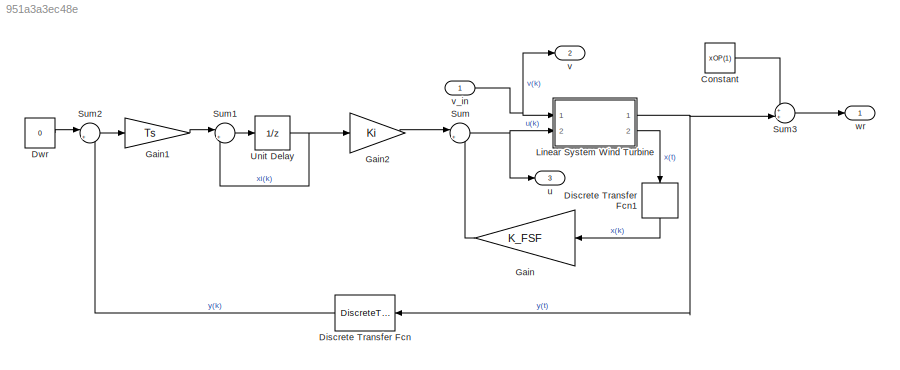
MODEL slx_951a3a3ec48e
KIND model
CONFIG AbsTol = auto
CONFIG EnableMultiTasking = off
CONFIG FixedStep = STEP_SIZE
CONFIG MaxStep = auto
CONFIG MinStep = auto
CONFIG RelTol = 1e-3
CONFIG SampleTimeConstraint = Unconstrained
CONFIG SolverName = ode4
CONFIG StartTime = 0.0
CONFIG StopTime = TIME_SIM
BLOCK [Constant] Constant
  Value = xOP(1)
BLOCK [DiscreteTransferFcn] Discrete Transfer Fcn
  Denominator = 1
  InputPortMap = u0
  NameLocation = top
  Ports = [1, 1]
  SampleTime = Ts
BLOCK [DiscreteTransferFcn] Discrete Transfer Fcn1
  Denominator = 1
  InputPortMap = u0
  NameLocation = left
  Ports = [1, 1]
  SampleTime = Ts
BLOCK [Constant] Dwr
  SampleTime = Ts
  Value = 0
BLOCK [Gain] Gain
  Gain = K_FSF
  Multiplication = Matrix(K*u) (u vector)
  NameLocation = top
BLOCK [Gain] Gain1
  Gain = Ts
  Multiplication = Matrix(K*u) (u vector)
BLOCK [Gain] Gain2
  Gain = Ki
  Multiplication = Matrix(K*u) (u vector)
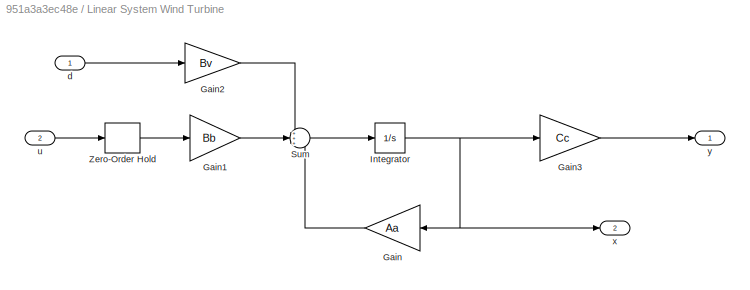
BLOCK [SubSystem] Linear System Wind Turbine
  Ports = [2, 2]
  RequestExecContextInheritance = off
BLOCK [Gain] Linear System Wind Turbine/Gain
  Gain = Aa
  Multiplication = Matrix(K*u) (u vector)
  NameLocation = top
BLOCK [Gain] Linear System Wind Turbine/Gain1
  Gain = Bb
  Multiplication = Matrix(K*u) (u vector)
BLOCK [Gain] Linear System Wind Turbine/Gain2
  Gain = Bv
  Multiplication = Matrix(K*u) (u vector)
BLOCK [Gain] Linear System Wind Turbine/Gain3
  Gain = Cc
  Multiplication = Matrix(K*u) (u vector)
BLOCK [Integrator] Linear System Wind Turbine/Integrator
  Ports = [1, 1]
BLOCK [Sum] Linear System Wind Turbine/Sum
  Inputs = +++
  Ports = [3, 1]
BLOCK [ZeroOrderHold] Linear System Wind Turbine/Zero-Order Hold
  SampleTime = -1
BLOCK [Inport] Linear System Wind Turbine/d
BLOCK [Inport] Linear System Wind Turbine/u
  Port = 2
BLOCK [Outport] Linear System Wind Turbine/x
  Port = 2
BLOCK [Outport] Linear System Wind Turbine/y
BLOCK [Sum] Sum
  Inputs = |+-
  Ports = [2, 1]
BLOCK [Sum] Sum1
  Inputs = |++
  Ports = [2, 1]
BLOCK [Sum] Sum2
  Inputs = |+-
  Ports = [2, 1]
BLOCK [Sum] Sum3
  Inputs = ++|
  Ports = [2, 1]
BLOCK [UnitDelay] Unit Delay
  HasFrameUpgradeWarning = on
  SampleTime = Ts
BLOCK [Outport] u
  Port = 3
BLOCK [Outport] v
  Port = 2
BLOCK [Inport] v_in
BLOCK [Outport] wr
LINE Constant:1 -> Sum3:1
LINE Discrete Transfer Fcn1:1 -> Gain:1
LINE Discrete Transfer Fcn:1 -> Sum2:2
LINE Dwr:1 -> Sum2:1
LINE Gain1:1 -> Sum1:1
LINE Gain2:1 -> Sum:1
LINE Gain:1 -> Sum:2
LINE Linear System Wind Turbine/Gain1:1 -> Linear System Wind Turbine/Sum:2
LINE Linear System Wind Turbine/Gain2:1 -> Linear System Wind Turbine/Sum:1
LINE Linear System Wind Turbine/Gain3:1 -> Linear System Wind Turbine/y:1
LINE Linear System Wind Turbine/Gain:1 -> Linear System Wind Turbine/Sum:3
NET Linear System Wind Turbine/Integrator:1 -> Linear System Wind Turbine/Gain3:1, Linear System Wind Turbine/Gain:1, Linear System Wind Turbine/x:1
LINE Linear System Wind Turbine/Sum:1 -> Linear System Wind Turbine/Integrator:1
LINE Linear System Wind Turbine/Zero-Order Hold:1 -> Linear System Wind Turbine/Gain1:1
LINE Linear System Wind Turbine/d:1 -> Linear System Wind Turbine/Gain2:1
LINE Linear System Wind Turbine/u:1 -> Linear System Wind Turbine/Zero-Order Hold:1
NET Linear System Wind Turbine:1 -> Discrete Transfer Fcn:1, Sum3:2
LINE Linear System Wind Turbine:2 -> Discrete Transfer Fcn1:1
LINE Sum1:1 -> Unit Delay:1
LINE Sum2:1 -> Gain1:1
LINE Sum3:1 -> wr:1
NET Sum:1 -> Linear System Wind Turbine:2, u:1
NET Unit Delay:1 -> Gain2:1, Sum1:2
NET v_in:1 -> Linear System Wind Turbine:1, v:1
note: NET lines group one-source signal fan-out (src -> all destinations, sorted); 1:1 wires keep LINE
